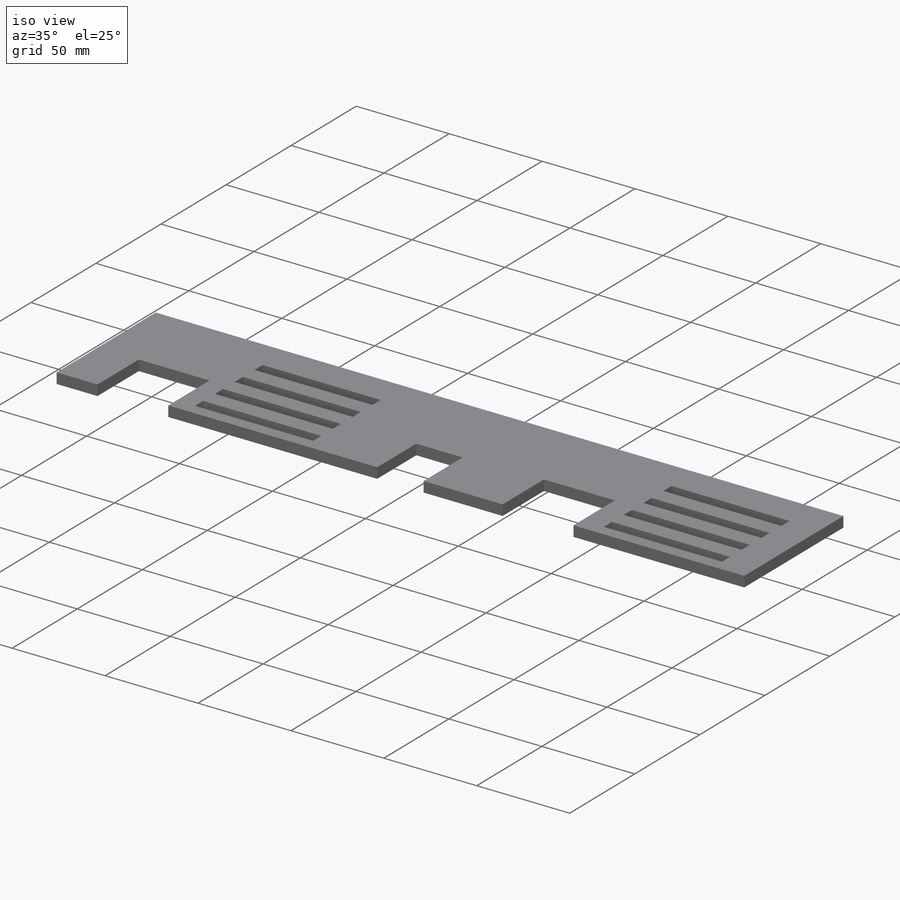
[diagram: iso view]
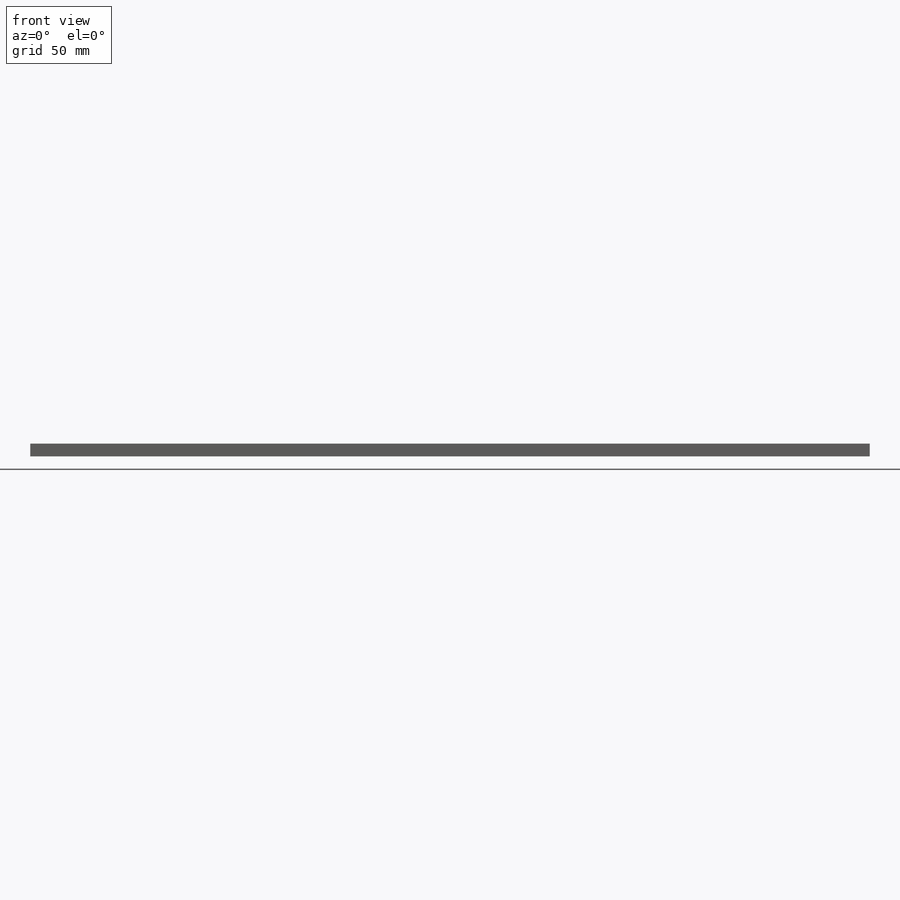
[diagram: front view]
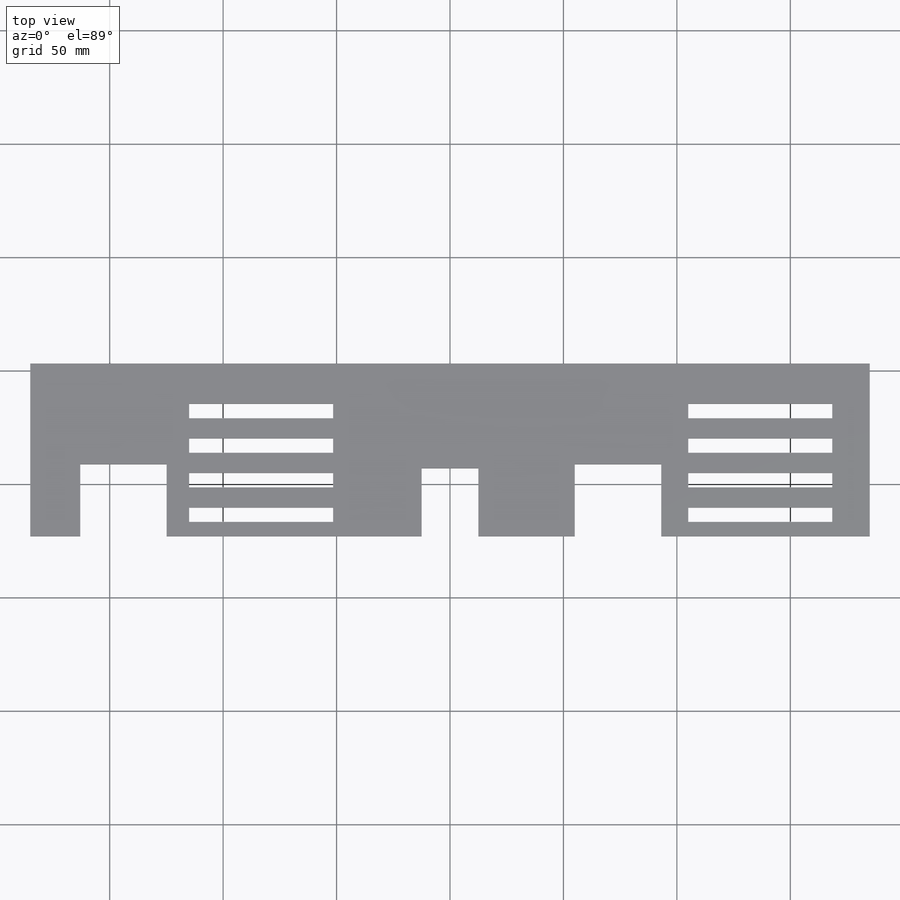
[diagram: top view]
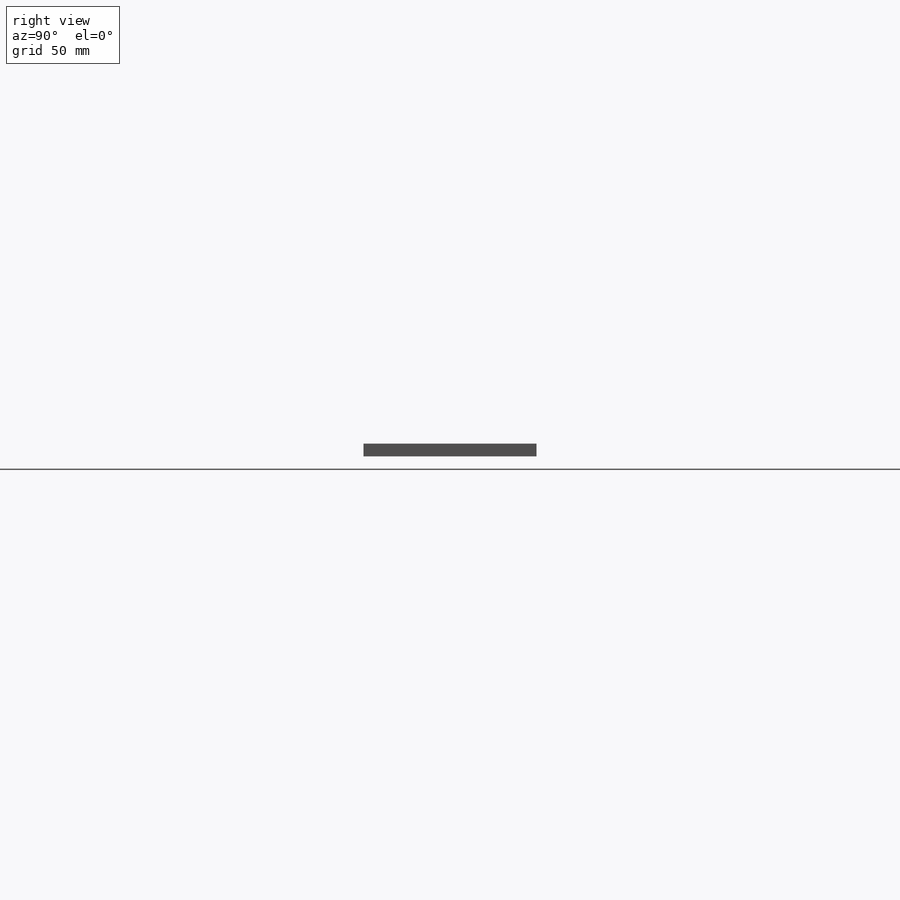
[diagram: right view]
SOLIDWORKS PART (.sldprt)
format: sldprt  version: not decoded by parser v0  size: 304,640 bytes
history: native  units: mm
features: sketch x4, cut_extrude x3, material x1, extrude x1, pattern_linear x1 (+13 scaffold rows collapsed)
feature tree (23):
  scaffold x13  (default folders/planes/origin — collapsed)
  material  "Acrylic (Medium-high impact)"
  sketch  "Sketch1"  dims[D10=10.0mm D11=10.0mm D1=6.35mm D2=370.0mm D3=76.2mm D4=76.2mm D5=185.0mm D6=3.175mm D7=3.175mm D8=6.35mm D9=6.35mm]
  extrude  "Boss-Extrude1"  Depth=5.6388mm
  sketch  "Sketch2"  dims[D1=6.35mm D2=6.35mm D3=6.35mm D4=6.35mm D5=70.0mm D6=63.5mm D7=6.35mm]
  cut_extrude  "Cut-Extrude1"  [1 undecoded]
  pattern_linear  "LPattern1"  Count1=4 Count2=2 Spacing1=15.24mm Spacing2=220mm
  sketch  "Sketch3"  dims[D1=30.0mm D2=25.0mm D3=172.5mm]
  cut_extrude  "Cut-Extrude2"  [1 undecoded]
  sketch  "Sketch4"  dims[D1=31.75mm D2=31.75mm D3=38.1mm D4=38.1mm D5=22.0mm D6=240.0mm]
  cut_extrude  "Cut-Extrude3"  [1 undecoded]
decode coverage: 6 of 9 modeling features carry decoded parameters
note: 3 parameter values undecoded
summary: no parameter record found for 3 features
note: suppression state not decoded; provenance and decode notes live in map.json
